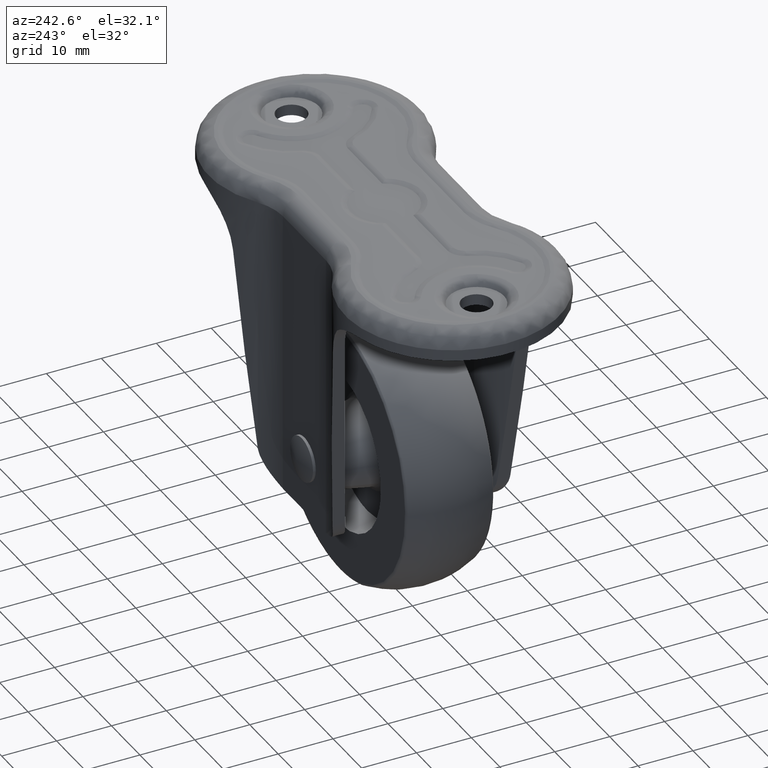
[diagram: clean part render]
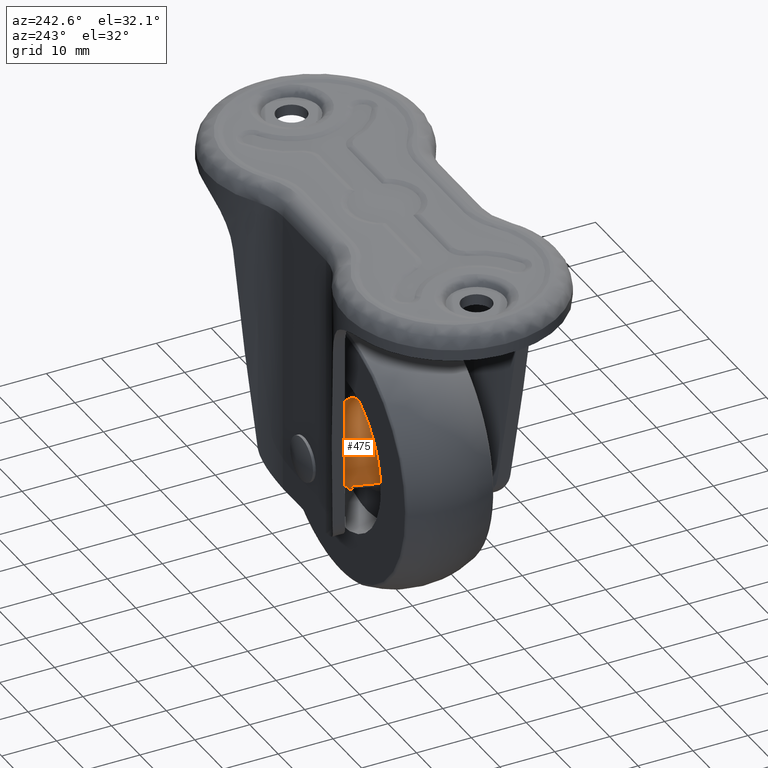
[diagram: same view with one face highlighted and labeled with its STEP entity id]
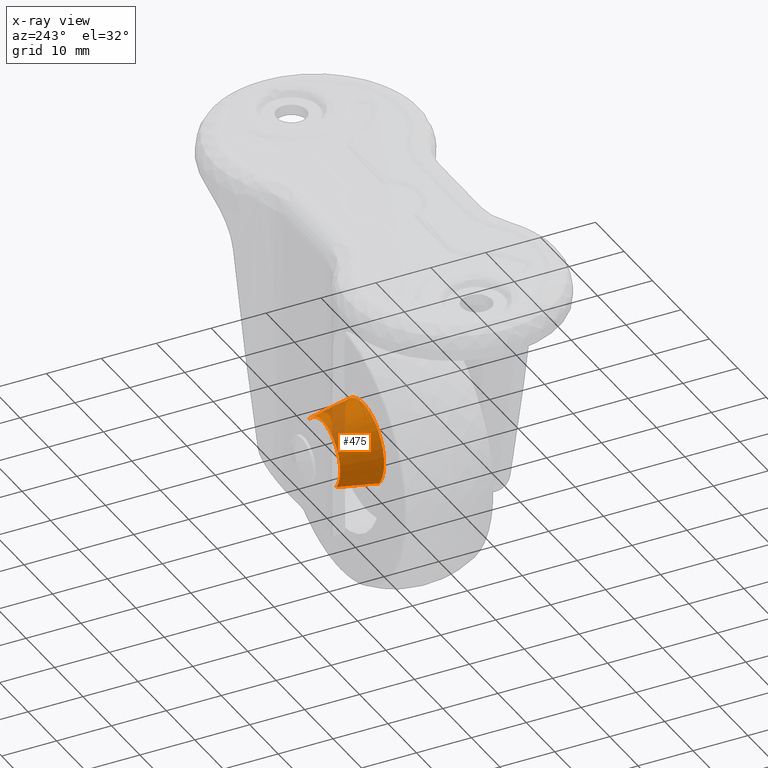
[diagram: x-ray of the same camera — body ghosted, the highlighted face saturated]
A machine part, auxiliary view. The second image highlights one B-rep face of the part: STEP entity #475.
The next image is the same camera in x-ray: the body ghosted, the highlighted face saturated — about 16% of this face is hidden behind the body in this view.
In plain terms, the highlighted face is a freeform B-spline surface patch.
Its self-contained STEP definition (entity closure, byte-faithful):
#254=CARTESIAN_POINT('',(-5.846032048694302,3.826351727814262,-49.603899303159977));
#255=VERTEX_POINT('',#254);
#269=CARTESIAN_POINT('',(-4.828231349005664,11.173648177666831,-48.802355299799849));
#270=VERTEX_POINT('',#269);
#271=CARTESIAN_POINT('',(-4.828231349005664,11.173648177666831,-48.802355299799849));
#272=CARTESIAN_POINT('',(-5.846032048694302,3.826351727814262,-49.603899303159977));
#273=QUASI_UNIFORM_CURVE('',1,(#271,#272),.UNSPECIFIED.,.F.,.U.);
#274=EDGE_CURVE('',#270,#255,#273,.T.);
#306=CARTESIAN_POINT('',(4.602862979913940,11.173648177666660,-40.927730832376717));
#307=VERTEX_POINT('',#306);
#323=CARTESIAN_POINT('',(5.573155582506987,3.826351727814947,-40.069288452853151));
#324=VERTEX_POINT('',#323);
#325=CARTESIAN_POINT('',(4.602862979913940,11.173648177666660,-40.927730832376717));
#326=CARTESIAN_POINT('',(5.573155582506987,3.826351727814947,-40.069288452853151));
#327=QUASI_UNIFORM_CURVE('',1,(#325,#326),.UNSPECIFIED.,.F.,.U.);
#328=EDGE_CURVE('',#307,#324,#327,.T.);
#363=CARTESIAN_POINT('',(4.578605664754025,11.357330589648781,-40.949191891953149));
#364=CARTESIAN_POINT('',(0.527797556707170,11.357330589648777,-36.370586227199119));
#365=CARTESIAN_POINT('',(-4.050808108046855,11.357330589648781,-40.421394335245978));
#366=CARTESIAN_POINT('',(-8.374630117506500,11.357330589648777,-44.246788906457979));
#367=CARTESIAN_POINT('',(-4.802786331411853,11.357330589648781,-48.782316699635203));
#368=CARTESIAN_POINT('',(5.598019330841179,3.638077253320518,-40.047290866532236));
#369=CARTESIAN_POINT('',(0.645310197373420,3.638077253320519,-34.449271535691075));
#370=CARTESIAN_POINT('',(-4.952709133467759,3.638077253320518,-39.401980669158817));
#371=CARTESIAN_POINT('',(-10.239217945178670,3.638077253320518,-44.079088576177099));
#372=CARTESIAN_POINT('',(-5.872113192038289,3.638077253320518,-49.624438868565193));
#380=(BOUNDED_SURFACE()B_SPLINE_SURFACE(2,1,((#363,#368),(#364,#369),(#365,#370),(#366,#371),(#367,#372)),.UNSPECIFIED.,.F.,.F.,.U.)B_SPLINE_SURFACE_WITH_KNOTS((3,2,3),(2,2),(0.0,12.384046025142410,24.272730209279111),(0.0,7.838335394245105),.UNSPECIFIED.)GEOMETRIC_REPRESENTATION_ITEM()RATIONAL_B_SPLINE_SURFACE(((1.0,1.0),(0.707106781186548,0.707106781186548),(1.0,1.0),(0.718822509939086,0.718822509939086),(0.977505800795127,0.977505800795127)))REPRESENTATION_ITEM('')SURFACE());
#381=CARTESIAN_POINT('',(-7.342162060915685,3.826351725109173,-43.789778620934641));
#382=VERTEX_POINT('',#381);
#383=CARTESIAN_POINT('',(-5.846032048694302,3.826351727814263,-49.603899303159977));
#384=CARTESIAN_POINT('',(-7.441235079474089,3.826351727815065,-47.578310247443959));
#385=CARTESIAN_POINT('',(-7.441235079474089,3.826351727815065,-45.0));
#386=CARTESIAN_POINT('',(-7.441235079474089,3.826351727815065,-44.390834075897828));
#387=CARTESIAN_POINT('',(-7.342162060915685,3.826351725109173,-43.789778620934641));
#395=(BOUNDED_CURVE()B_SPLINE_CURVE(2,(#383,#384,#385,#386,#387),.UNSPECIFIED.,.F.,.U.)B_SPLINE_CURVE_WITH_KNOTS((3,2,3),(0.142872459110177,0.250000000000000,0.277993891205652),.UNSPECIFIED.)CURVE()GEOMETRIC_REPRESENTATION_ITEM()RATIONAL_B_SPLINE_CURVE((0.856547225993990,0.874492278900840,1.0,0.967203116390652,0.941751131914460))REPRESENTATION_ITEM(''));
#396=EDGE_CURVE('',#255,#382,#395,.T.);
#397=ORIENTED_EDGE('',*,*,#396,.T.);
#398=CARTESIAN_POINT('',(0.0,3.826351727815065,-37.558764920525910));
#399=VERTEX_POINT('',#398);
#400=CARTESIAN_POINT('',(-7.342162060915685,3.826351725109173,-43.789778620934641));
#401=CARTESIAN_POINT('',(-6.315093203650601,3.826351727815065,-37.558764920525910));
#402=CARTESIAN_POINT('',(0.0,3.826351727815065,-37.558764920525910));
#410=(BOUNDED_CURVE()B_SPLINE_CURVE(2,(#400,#401,#402),.UNSPECIFIED.,.F.,.U.)B_SPLINE_CURVE_WITH_KNOTS((3,3),(0.277993891205652,0.500000000000000),.UNSPECIFIED.)CURVE()GEOMETRIC_REPRESENTATION_ITEM()RATIONAL_B_SPLINE_CURVE((0.941751131914460,0.739903664795896,1.0))REPRESENTATION_ITEM(''));
#411=EDGE_CURVE('',#382,#399,#410,.T.);
#412=ORIENTED_EDGE('',*,*,#411,.T.);
#413=CARTESIAN_POINT('',(0.0,3.826351727815065,-37.558764920525910));
#414=CARTESIAN_POINT('',(3.352031986193107,3.826351727815065,-37.558764920525910));
#415=CARTESIAN_POINT('',(5.573155582506987,3.826351727814948,-40.069288452853151));
#423=(BOUNDED_CURVE()B_SPLINE_CURVE(2,(#413,#414,#415),.UNSPECIFIED.,.F.,.U.)B_SPLINE_CURVE_WITH_KNOTS((3,3),(0.500000000000000,0.634220111940371),.UNSPECIFIED.)CURVE()GEOMETRIC_REPRESENTATION_ITEM()RATIONAL_B_SPLINE_CURVE((1.0,0.842751357537132,0.854350158224964))REPRESENTATION_ITEM(''));
#424=EDGE_CURVE('',#399,#324,#423,.T.);
#425=ORIENTED_EDGE('',*,*,#424,.T.);
#426=ORIENTED_EDGE('',*,*,#328,.F.);
#427=CARTESIAN_POINT('',(0.0,11.173648177666919,-38.854292246987590));
#428=VERTEX_POINT('',#427);
#429=CARTESIAN_POINT('',(0.0,11.173648177666919,-38.854292246987590));
#430=CARTESIAN_POINT('',(2.768439478911237,11.173648177666921,-38.854292246987605));
#431=CARTESIAN_POINT('',(4.602862979913940,11.173648177666664,-40.927730832376717));
#439=(BOUNDED_CURVE()B_SPLINE_CURVE(2,(#429,#430,#431),.UNSPECIFIED.,.F.,.U.)B_SPLINE_CURVE_WITH_KNOTS((3,3),(0.0,0.134220111940276),.UNSPECIFIED.)CURVE()GEOMETRIC_REPRESENTATION_ITEM()RATIONAL_B_SPLINE_CURVE((1.0,0.842751357537243,0.854350158224947))REPRESENTATION_ITEM(''));
#440=EDGE_CURVE('',#428,#307,#439,.T.);
#441=ORIENTED_EDGE('',*,*,#440,.F.);
#442=CARTESIAN_POINT('',(-6.063883456985685,11.173648178314380,-44.000479512901848));
#443=VERTEX_POINT('',#442);
#444=CARTESIAN_POINT('',(-6.063883456985685,11.173648178314375,-44.000479512901848));
#445=CARTESIAN_POINT('',(-5.215628433818162,11.173648177666919,-38.854292246987583));
#446=CARTESIAN_POINT('',(0.0,11.173648177666919,-38.854292246987590));
#454=(BOUNDED_CURVE()B_SPLINE_CURVE(2,(#444,#445,#446),.UNSPECIFIED.,.F.,.U.)B_SPLINE_CURVE_WITH_KNOTS((3,3),(0.777993891203287,1.0),.UNSPECIFIED.)CURVE()GEOMETRIC_REPRESENTATION_ITEM()RATIONAL_B_SPLINE_CURVE((0.941751131918760,0.739903664793125,1.0))REPRESENTATION_ITEM(''));
#455=EDGE_CURVE('',#443,#428,#454,.T.);
#456=ORIENTED_EDGE('',*,*,#455,.F.);
#457=CARTESIAN_POINT('',(-4.828231349005664,11.173648177666827,-48.802355299799849));
#458=CARTESIAN_POINT('',(-6.145707753012410,11.173648177666919,-47.129423557799235));
#459=CARTESIAN_POINT('',(-6.145707753012410,11.173648177666919,-45.0));
#460=CARTESIAN_POINT('',(-6.145707753012409,11.173648177666925,-44.496890542723825));
#461=CARTESIAN_POINT('',(-6.063883456985685,11.173648178314378,-44.000479512901840));
#469=(BOUNDED_CURVE()B_SPLINE_CURVE(2,(#457,#458,#459,#460,#461),.UNSPECIFIED.,.F.,.U.)B_SPLINE_CURVE_WITH_KNOTS((3,2,3),(0.642872459110375,0.750000000000000,0.777993891203288),.UNSPECIFIED.)CURVE()GEOMETRIC_REPRESENTATION_ITEM()RATIONAL_B_SPLINE_CURVE((0.856547225994056,0.874492278901072,1.0,0.967203116393422,0.941751131918759))REPRESENTATION_ITEM(''));
#470=EDGE_CURVE('',#270,#443,#469,.T.);
#471=ORIENTED_EDGE('',*,*,#470,.F.);
#472=ORIENTED_EDGE('',*,*,#274,.T.);
#473=EDGE_LOOP('',(#397,#412,#425,#426,#441,#456,#471,#472));
#474=FACE_OUTER_BOUND('',#473,.T.);
#475=ADVANCED_FACE('',(#474),#380,.T.);